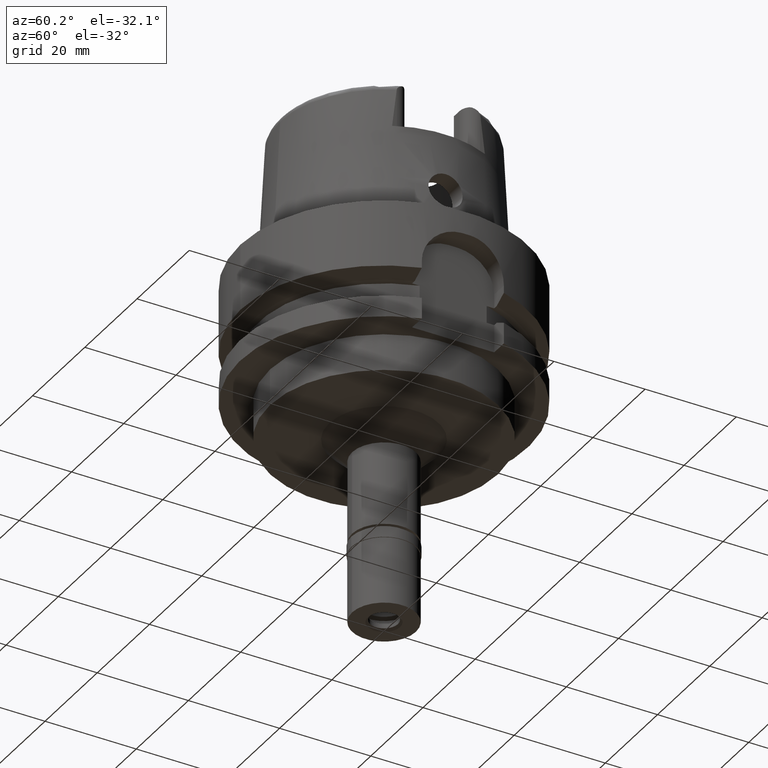
[diagram: clean part render]
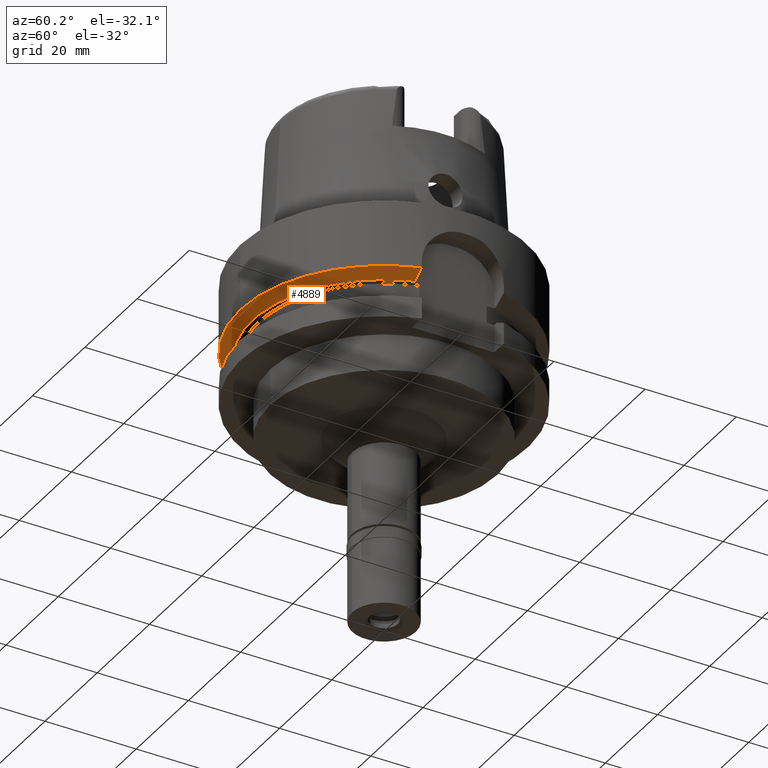
[diagram: same view with one face highlighted and labeled with its STEP entity id]
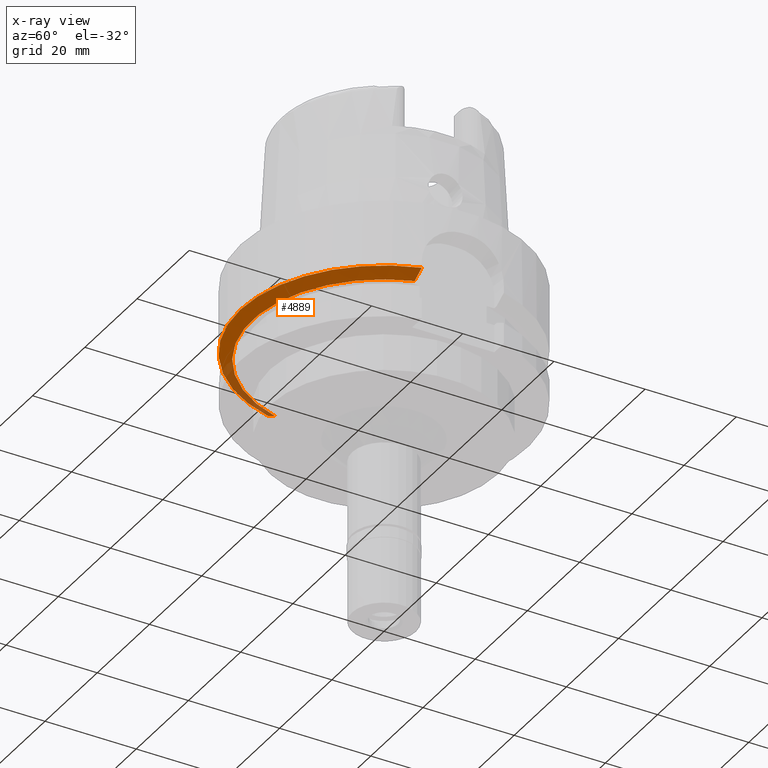
[diagram: x-ray of the same camera — body ghosted, the highlighted face saturated]
A machine part, auxiliary view. The second image highlights one B-rep face of the part: STEP entity #4889.
The next image is the same camera in x-ray: the body ghosted, the highlighted face saturated — about 12% of this face is hidden behind the body in this view.
In plain terms, the highlighted conical surface has half-angle 60 deg.
Its self-contained STEP definition (entity closure, byte-faithful):
#86 = AXIS2_PLACEMENT_3D ( 'NONE', #171, #3202, #3281 ) ;
#168 = DIRECTION ( 'NONE',  ( 0.0000000000000000000, -1.000000000000000000, 0.0000000000000000000 ) ) ;
#171 = CARTESIAN_POINT ( 'NONE',  ( 0.0000000000000000000, 0.0000000000000000000, -14.62250092523999889 ) ) ;
#184 = VERTEX_POINT ( 'NONE', #5478 ) ;
#321 = ORIENTED_EDGE ( 'NONE', *, *, #2360, .F. ) ;
#441 = CARTESIAN_POINT ( 'NONE',  ( 0.0000000000000000000, 0.0000000000000000000, -16.12500000000000000 ) ) ;
#450 = CIRCLE ( 'NONE', #4153, 28.89759526419000224 ) ;
#717 = CARTESIAN_POINT ( 'NONE',  ( 30.18691774053999666, -8.999999851450001032, -14.62250212332999943 ) ) ;
#820 = B_SPLINE_CURVE_WITH_KNOTS ( 'NONE', 3,
 ( #4725, #2204, #3005, #2264, #4339, #3968 ),
 .UNSPECIFIED., .F., .F.,
 ( 4, 1, 1, 4 ),
 ( 0.0000000000000000000, 0.3333333333333000081, 0.6666666666667000474, 1.000000000000000000 ),
 .UNSPECIFIED. ) ;
#1061 = EDGE_LOOP ( 'NONE', ( #4240, #4722, #2355, #321, #3379 ) ) ;
#1323 = VERTEX_POINT ( 'NONE', #3858 ) ;
#1347 = DIRECTION ( 'NONE',  ( 0.0000000000000000000, -1.000000000000000000, 0.0000000000000000000 ) ) ;
#1432 = EDGE_CURVE ( 'NONE', #184, #1323, #5124, .T. ) ;
#1617 = CARTESIAN_POINT ( 'NONE',  ( -30.46719534897000159, -8.000000472989999167, -14.62249663149000156 ) ) ;
#1644 = CARTESIAN_POINT ( 'NONE',  ( -30.16035497800999821, -8.000000472989999167, -14.79384256092999905 ) ) ;
#1733 = EDGE_CURVE ( 'NONE', #2693, #184, #2346, .T. ) ;
#1924 = EDGE_CURVE ( 'NONE', #5551, #3291, #820, .T. ) ;
#2055 = EDGE_CURVE ( 'NONE', #2693, #3291, #450, .T. ) ;
#2094 = CONICAL_SURFACE ( 'NONE', #2632, 30.19879763209999979, 1.047197551196400456 ) ;
#2152 = DIRECTION ( 'NONE',  ( 0.0000000000000000000, 0.0000000000000000000, 1.000000000000000000 ) ) ;
#2204 = CARTESIAN_POINT ( 'NONE',  ( 29.87612783670000027, -8.999999851450001032, -14.79445699861999941 ) ) ;
#2264 = CARTESIAN_POINT ( 'NONE',  ( 28.35093401777000111, -9.000000322240000017, -15.63588661750999975 ) ) ;
#2346 = B_SPLINE_CURVE_WITH_KNOTS ( 'NONE', 3,
 ( #3304, #3331, #5504, #4696, #1644, #1617 ),
 .UNSPECIFIED., .F., .F.,
 ( 4, 1, 1, 4 ),
 ( 0.0000000000000000000, 0.3333333333333000081, 0.6666666666667000474, 1.000000000000000000 ),
 .UNSPECIFIED. ) ;
#2355 = ORIENTED_EDGE ( 'NONE', *, *, #1924, .F. ) ;
#2360 = EDGE_CURVE ( 'NONE', #1323, #5551, #5187, .T. ) ;
#2518 = FACE_OUTER_BOUND ( 'NONE', #1061, .T. ) ;
#2632 = AXIS2_PLACEMENT_3D ( 'NONE', #4647, #4235, #4265 ) ;
#2693 = VERTEX_POINT ( 'NONE', #3509 ) ;
#2816 = CARTESIAN_POINT ( 'NONE',  ( 27.46036361508999946, -8.999999267043000017, -16.12500000000000000 ) ) ;
#3005 = CARTESIAN_POINT ( 'NONE',  ( 29.25977795154000205, -8.999999971595999071, -15.13503885027999907 ) ) ;
#3202 = DIRECTION ( 'NONE',  ( 0.0000000000000000000, 0.0000000000000000000, 1.000000000000000000 ) ) ;
#3281 = DIRECTION ( 'NONE',  ( -0.9672125547036138915, -0.2539682539683034701, 0.0000000000000000000 ) ) ;
#3291 = VERTEX_POINT ( 'NONE', #2816 ) ;
#3304 = CARTESIAN_POINT ( 'NONE',  ( -27.76816328250999888, -8.000000140845999752, -16.12500000000000000 ) ) ;
#3331 = CARTESIAN_POINT ( 'NONE',  ( -28.06112175073999992, -8.000000140845999752, -15.96247098213000193 ) ) ;
#3379 = ORIENTED_EDGE ( 'NONE', *, *, #1432, .F. ) ;
#3472 = CARTESIAN_POINT ( 'NONE',  ( 0.0000000000000000000, 0.0000000000000000000, -14.62250092523999889 ) ) ;
#3478 = AXIS2_PLACEMENT_3D ( 'NONE', #3472, #4716, #1347 ) ;
#3509 = CARTESIAN_POINT ( 'NONE',  ( -27.76816328250999888, -8.000000140845999752, -16.12500000000000000 ) ) ;
#3858 = CARTESIAN_POINT ( 'NONE',  ( 0.0000000000000000000, -31.50000000000000000, -14.62250092523999889 ) ) ;
#3968 = CARTESIAN_POINT ( 'NONE',  ( 27.46036361508999946, -8.999999267043000017, -16.12500000000000000 ) ) ;
#4153 = AXIS2_PLACEMENT_3D ( 'NONE', #441, #2152, #168 ) ;
#4235 = DIRECTION ( 'NONE',  ( 0.0000000000000000000, 0.0000000000000000000, 1.000000000000000000 ) ) ;
#4240 = ORIENTED_EDGE ( 'NONE', *, *, #1733, .F. ) ;
#4265 = DIRECTION ( 'NONE',  ( 0.0000000000000000000, 1.000000000000000000, 0.0000000000000000000 ) ) ;
#4339 = CARTESIAN_POINT ( 'NONE',  ( 27.75547480490000041, -8.999999267043000017, -15.96309156310999811 ) ) ;
#4647 = CARTESIAN_POINT ( 'NONE',  ( 0.0000000000000000000, 0.0000000000000000000, -15.37375046262000033 ) ) ;
#4696 = CARTESIAN_POINT ( 'NONE',  ( -29.55132033763999999, -7.999999798051001143, -15.13361280490000027 ) ) ;
#4716 = DIRECTION ( 'NONE',  ( 0.0000000000000000000, 0.0000000000000000000, 1.000000000000000000 ) ) ;
#4722 = ORIENTED_EDGE ( 'NONE', *, *, #2055, .T. ) ;
#4725 = CARTESIAN_POINT ( 'NONE',  ( 30.18691774053999666, -8.999999851450001032, -14.62250212332999943 ) ) ;
#4889 = ADVANCED_FACE ( 'NONE', ( #2518 ), #2094, .T. ) ;
#5124 = CIRCLE ( 'NONE', #86, 31.50000000000000000 ) ;
#5187 = CIRCLE ( 'NONE', #3478, 31.50000000000000000 ) ;
#5478 = CARTESIAN_POINT ( 'NONE',  ( -30.46719534897000159, -8.000000472989999167, -14.62249663149000156 ) ) ;
#5504 = CARTESIAN_POINT ( 'NONE',  ( -28.65165079220999900, -7.999999997337000401, -15.63446130994999805 ) ) ;
#5551 = VERTEX_POINT ( 'NONE', #717 ) ;